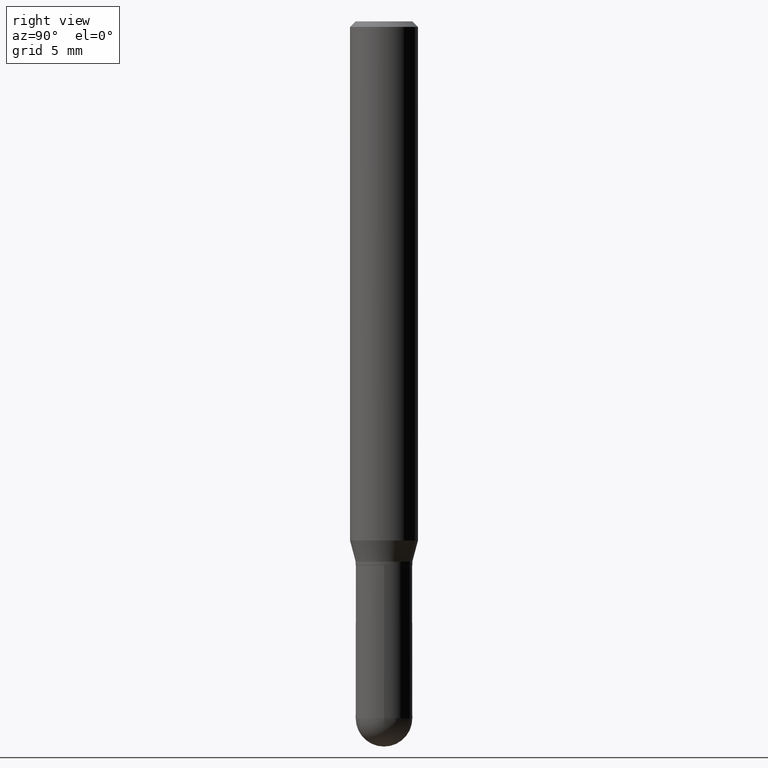
[diagram: clean part render]
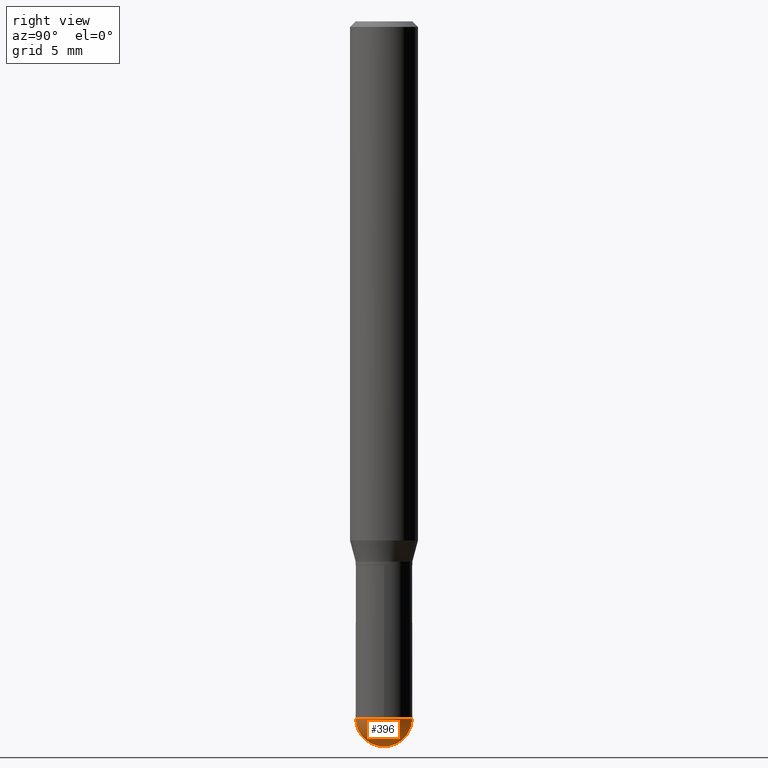
[diagram: same view with one face highlighted and labeled with its STEP entity id]
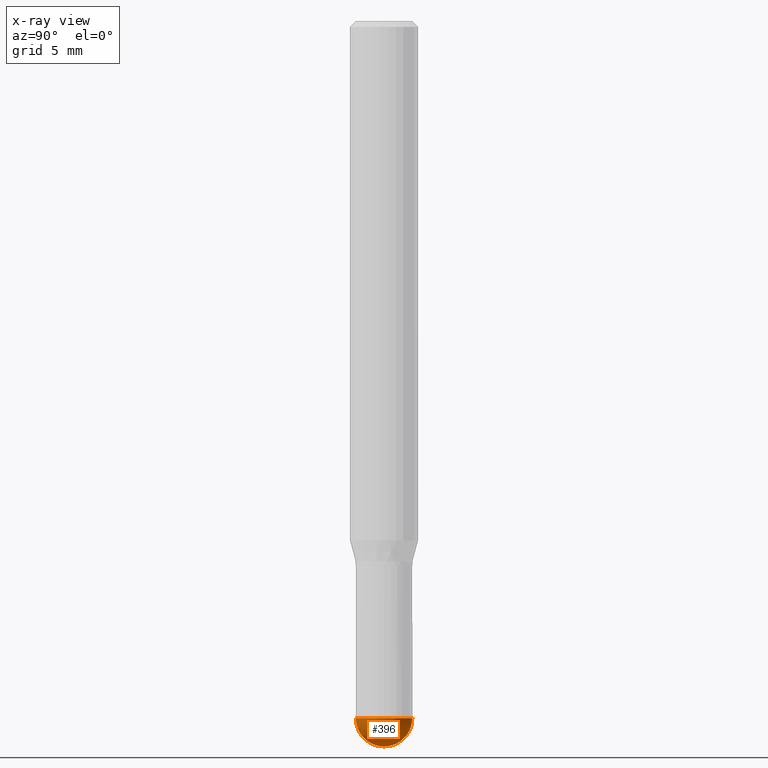
[diagram: x-ray of the same camera — body ghosted, the highlighted face saturated]
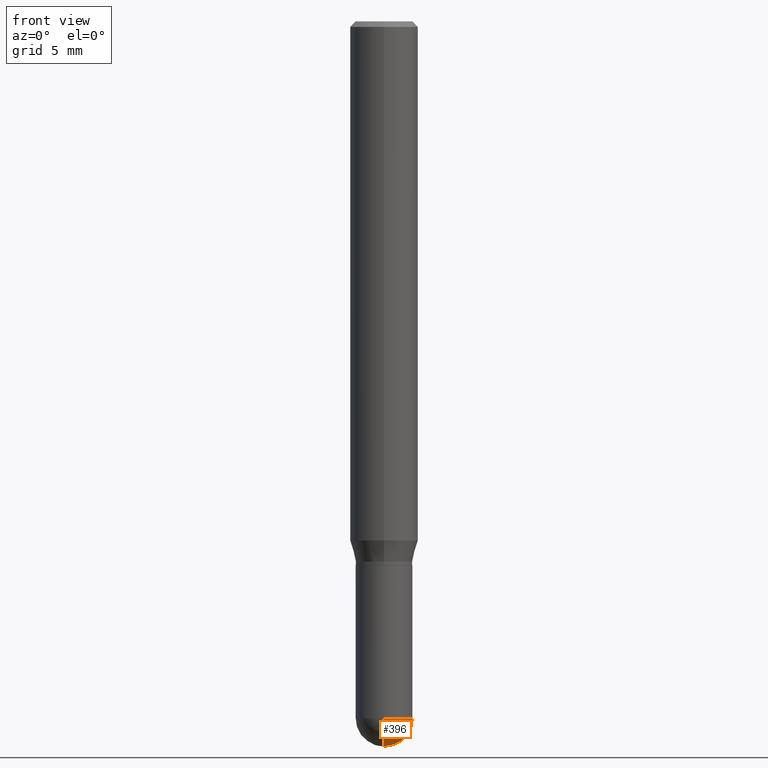
[diagram: same view with one face highlighted and labeled with its STEP entity id]
A machine part, right view. The second image highlights one B-rep face of the part: STEP entity #396.
The next image is the same camera in x-ray: the body ghosted, the highlighted face saturated — about 0% of this face is hidden behind the body in this view.
A second angle (front view) of the same face is appended — the face is thin or edge-on in the first view.
In plain terms, the highlighted spherical surface has radius 1.9837 mm.
Its self-contained STEP definition (entity closure, byte-faithful):
#6 = DIRECTION ( 'NONE',  ( -1.000000000000000000, 6.982962677686265922E-15, -4.883557194083112901E-29 ) ) ;
#40 = VERTEX_POINT ( 'NONE', #488 ) ;
#41 = DIRECTION ( 'NONE',  ( -2.445468806185136597E-29, 3.491481338843145583E-15, 1.000000000000000000 ) ) ;
#62 = CARTESIAN_POINT ( 'NONE',  ( 0.07810000000000000275, -6.519119381820976762E-15, -1.921900000000000164 ) ) ;
#67 = EDGE_CURVE ( 'NONE', #164, #429, #382, .T. ) ;
#91 = CARTESIAN_POINT ( 'NONE',  ( 5.453693851273441764E-16, 0.07809999999999325815, -1.921900000000000386 ) ) ;
#106 = AXIS2_PLACEMENT_3D ( 'NONE', #146, #461, #456 ) ;
#115 = VERTEX_POINT ( 'NONE', #281 ) ;
#137 = DIRECTION ( 'NONE',  ( 1.000000000000000000, -6.982962677686266711E-15, 0.000000000000000000 ) ) ;
#146 = CARTESIAN_POINT ( 'NONE',  ( 4.693267649888723399E-29, -6.719842476623982487E-15, -1.921900000000000164 ) ) ;
#157 = AXIS2_PLACEMENT_3D ( 'NONE', #352, #6, #159 ) ;
#159 = DIRECTION ( 'NONE',  ( 6.982962677686265922E-15, 1.000000000000000000, -3.497884755011862382E-15 ) ) ;
#164 = VERTEX_POINT ( 'NONE', #62 ) ;
#202 = DIRECTION ( 'NONE',  ( 6.982962677686266711E-15, 1.000000000000000000, 0.000000000000000000 ) ) ;
#213 = CIRCLE ( 'NONE', #277, 0.07809999999999996112 ) ;
#237 = ORIENTED_EDGE ( 'NONE', *, *, #425, .T. ) ;
#257 = EDGE_CURVE ( 'NONE', #115, #40, #302, .T. ) ;
#266 = EDGE_CURVE ( 'NONE', #40, #164, #510, .T. ) ;
#277 = AXIS2_PLACEMENT_3D ( 'NONE', #368, #322, #202 ) ;
#280 = CARTESIAN_POINT ( 'NONE',  ( 4.699946498607214373E-29, -6.710277985122641264E-15, -1.921900000000000164 ) ) ;
#281 = CARTESIAN_POINT ( 'NONE',  ( 4.887598188011028267E-29, -6.987744923436962171E-15, -2.000000000000000000 ) ) ;
#302 = CIRCLE ( 'NONE', #106, 0.07809999999999996112 ) ;
#306 = ORIENTED_EDGE ( 'NONE', *, *, #266, .F. ) ;
#308 = CARTESIAN_POINT ( 'NONE',  ( 4.699946498607214373E-29, -6.710277985122641264E-15, -1.921900000000000164 ) ) ;
#322 = DIRECTION ( 'NONE',  ( 1.000000000000000000, -6.982962677686265922E-15, 4.883557194083112340E-29 ) ) ;
#327 = DIRECTION ( 'NONE',  ( -2.445468806185136597E-29, 3.491481338843145583E-15, 1.000000000000000000 ) ) ;
#348 = EDGE_LOOP ( 'NONE', ( #458, #237, #437, #306 ) ) ;
#352 = CARTESIAN_POINT ( 'NONE',  ( 4.693267649888723399E-29, -6.719842476623982487E-15, -1.921900000000000164 ) ) ;
#368 = CARTESIAN_POINT ( 'NONE',  ( 4.693267649888723399E-29, -6.719842476623982487E-15, -1.921900000000000164 ) ) ;
#382 = CIRCLE ( 'NONE', #453, 0.07810000000000000275 ) ;
#394 = FACE_OUTER_BOUND ( 'NONE', #348, .T. ) ;
#396 = ADVANCED_FACE ( 'NONE', ( #394 ), #476, .T. ) ;
#425 = EDGE_CURVE ( 'NONE', #115, #429, #213, .T. ) ;
#429 = VERTEX_POINT ( 'NONE', #91 ) ;
#437 = ORIENTED_EDGE ( 'NONE', *, *, #67, .F. ) ;
#446 = AXIS2_PLACEMENT_3D ( 'NONE', #308, #41, #512 ) ;
#453 = AXIS2_PLACEMENT_3D ( 'NONE', #280, #327, #137 ) ;
#456 = DIRECTION ( 'NONE',  ( -7.105427357601000281E-15, -1.000000000000000000, 0.000000000000000000 ) ) ;
#458 = ORIENTED_EDGE ( 'NONE', *, *, #257, .F. ) ;
#461 = DIRECTION ( 'NONE',  ( -1.000000000000000000, 7.105427357601001070E-15, -4.926315508542082329E-29 ) ) ;
#476 = SPHERICAL_SURFACE ( 'NONE', #157, 0.07809999999999996112 ) ;
#488 = CARTESIAN_POINT ( 'NONE',  ( -5.549338766285910317E-16, -0.07810000000000670572, -1.921899999999999720 ) ) ;
#510 = CIRCLE ( 'NONE', #446, 0.07810000000000000275 ) ;
#512 = DIRECTION ( 'NONE',  ( 1.000000000000000000, -6.982962677686266711E-15, 0.000000000000000000 ) ) ;